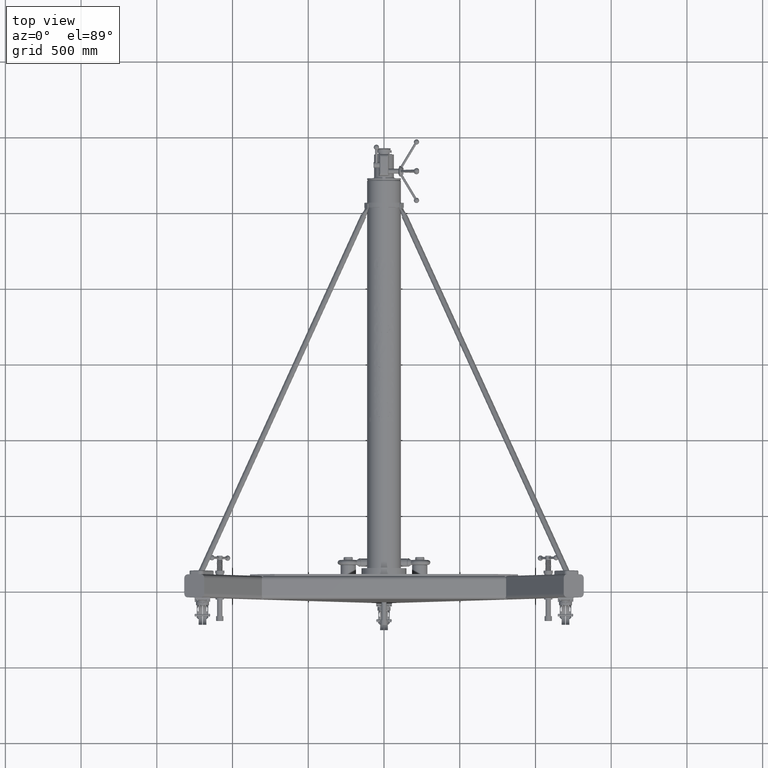
[diagram: clean part render]
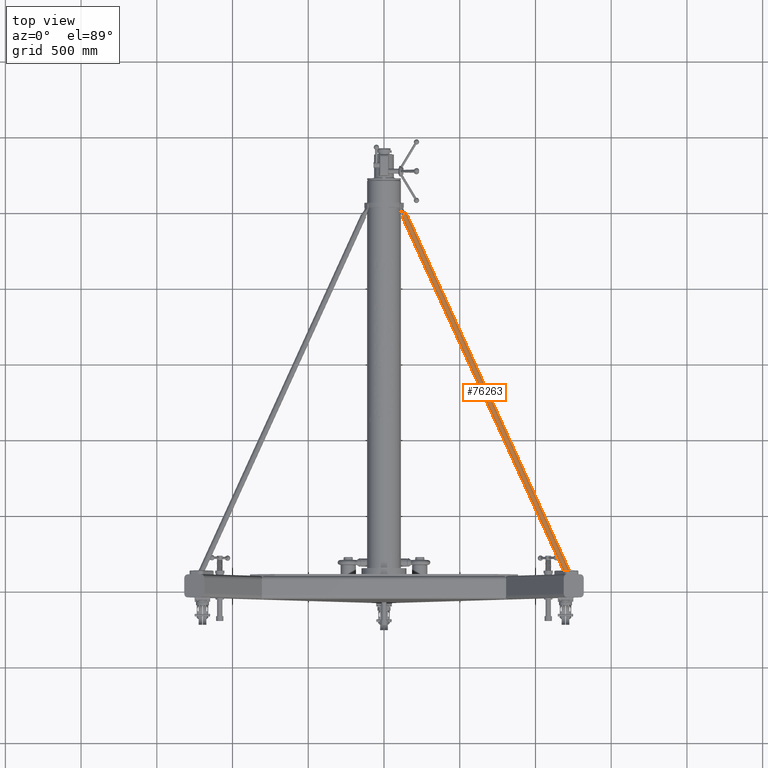
[diagram: same view with one face highlighted and labeled with its STEP entity id]
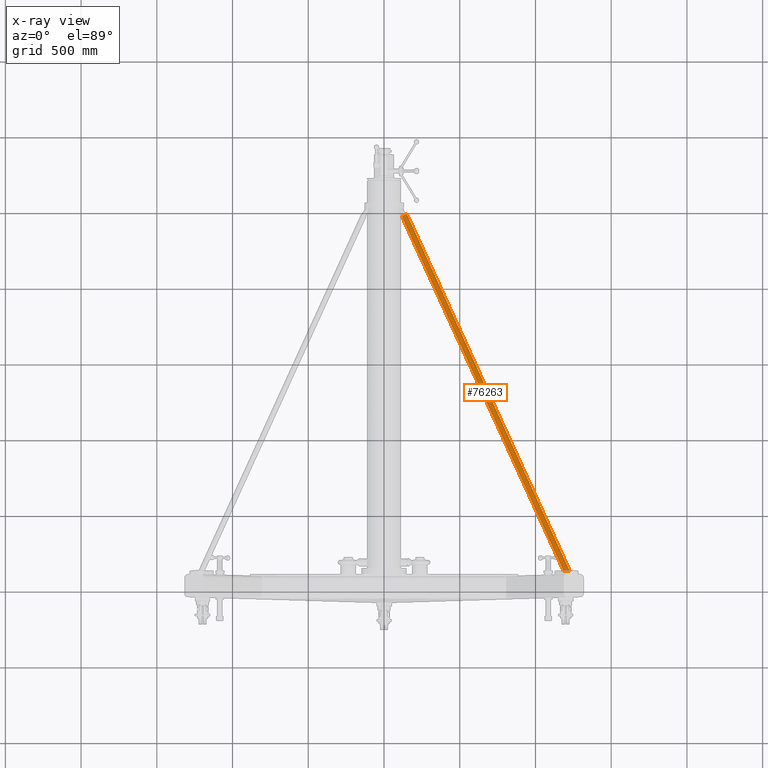
[diagram: x-ray of the same camera — body ghosted, the highlighted face saturated]
A machine part, top view. The second image highlights one B-rep face of the part: STEP entity #76263.
The next image is the same camera in x-ray: the body ghosted, the highlighted face saturated — about 0% of this face is hidden behind the body in this view.
In plain terms, the highlighted cylindrical surface (edge-blend (fillet) strip) has radius 19.05 mm, axis along (0.3992, -0.8794, 0.2594).
Its self-contained STEP definition (entity closure, byte-faithful):
#3976 = EDGE_CURVE ( 'Defeatured_1390+Defeatured_1391+Defeatured_1391+Defeatured_1391', #122415, #75108, #76116, .T. ) ;
#5484 = DIRECTION ( 'NONE',  ( -0.8607012654306172017, -0.2618904726832433916, 0.4365852860597591034 ) ) ;
#10686 = CARTESIAN_POINT ( 'NONE',  ( 4.683855723326640685, 96.46339354482201145, -2.995481012481632899 ) ) ;
#14509 = ORIENTED_EDGE ( 'NONE', *, *, #34067, .T. ) ;
#16142 = VERTEX_POINT ( 'NONE', #101010 ) ;
#17406 = CARTESIAN_POINT ( 'NONE',  ( 46.65312447834764953, 4.000000031182245230, 24.27919194072044462 ) ) ;
#31317 = CARTESIAN_POINT ( 'NONE',  ( 48.12248507572188316, 4.000000031777481979, 23.74019192898386876 ) ) ;
#32184 = CARTESIAN_POINT ( 'NONE',  ( 5.974907621472562269, 96.85622925384687676, -3.650358941571271831 ) ) ;
#32610 = LINE ( 'NONE', #97272, #64913 ) ;
#34067 = EDGE_CURVE ( 'NONE', #75108, #84948, #32610, .T. ) ;
#34824 = ORIENTED_EDGE ( 'NONE', *, *, #120582, .F. ) ;
#39277 = CARTESIAN_POINT ( 'NONE',  ( 5.329381672399601477, 96.65981139933444410, -3.322919977026452365 ) ) ;
#44402 =( BOUNDED_CURVE ( )  B_SPLINE_CURVE ( 3, ( #31317, #142242, #140808, #17406 ),
 .UNSPECIFIED., .F., .F. ) 
 B_SPLINE_CURVE_WITH_KNOTS ( ( 4, 4 ),
 ( 5.294905405019736833, 8.436498058609526396 ),
 .UNSPECIFIED. ) 
 CURVE ( )  GEOMETRIC_REPRESENTATION_ITEM ( )  RATIONAL_B_SPLINE_CURVE ( ( 1.000000000000000000, 0.3333333333333345916, 0.3333333333333345916, 1.000000000000000000 ) ) 
 REPRESENTATION_ITEM ( '' )  );
#47738 = EDGE_CURVE ( 'Defeatured_13925+Defeatured_1390+Defeatured_1390+Defeatured_1390', #16142, #84948, #44402, .T. ) ;
#49576 = CYLINDRICAL_SURFACE ( 'NONE', #88664, 0.7499999999999990008 ) ;
#61300 = DIRECTION ( 'NONE',  ( 0.3991681037299277257, -0.8794157856004611862, 0.2594083672539834184 ) ) ;
#62211 = DIRECTION ( 'NONE',  ( -0.8607012654306172017, -0.2618904726832433916, 0.4365852860597591034 ) ) ;
#64913 = VECTOR ( 'NONE', #97987, 39.37007874015748854 ) ;
#68331 = ORIENTED_EDGE ( 'NONE', *, *, #3976, .T. ) ;
#72312 = FACE_OUTER_BOUND ( 'NONE', #133817, .T. ) ;
#75108 = VERTEX_POINT ( 'NONE', #10686 ) ;
#76116 = CIRCLE ( 'NONE', #83117, 0.7499999999999990008 ) ;
#76263 = ADVANCED_FACE ( 'Defeatured_1390', ( #72312 ), #49576, .T. ) ;
#83117 = AXIS2_PLACEMENT_3D ( 'NONE', #104124, #140082, #62211 ) ;
#84409 = CARTESIAN_POINT ( 'NONE',  ( 5.974907621472564045, 96.85622925384687676, -3.650358941571271387 ) ) ;
#84948 = VERTEX_POINT ( 'NONE', #110610 ) ;
#88664 = AXIS2_PLACEMENT_3D ( 'NONE', #39277, #61300, #5484 ) ;
#95443 = DIRECTION ( 'NONE',  ( 0.3991681037299276702, -0.8794157856004609641, 0.2594083672539834184 ) ) ;
#97272 = CARTESIAN_POINT ( 'NONE',  ( 4.683855723326639797, 96.46339354482201145, -2.995481012481633343 ) ) ;
#97987 = DIRECTION ( 'NONE',  ( 0.3991681037299276702, -0.8794157856004609641, 0.2594083672539834184 ) ) ;
#101010 = CARTESIAN_POINT ( 'NONE',  ( 48.12248507572188316, 4.000000031777481979, 23.74019192898386876 ) ) ;
#102694 = VECTOR ( 'NONE', #95443, 39.37007874015748854 ) ;
#104124 = CARTESIAN_POINT ( 'NONE',  ( 5.329381672399601477, 96.65981139933444410, -3.322919977026452365 ) ) ;
#105205 = ORIENTED_EDGE ( 'NONE', *, *, #47738, .F. ) ;
#107915 = LINE ( 'NONE', #84409, #102694 ) ;
#110610 = CARTESIAN_POINT ( 'NONE',  ( 46.65312447834764953, 4.000000031182245230, 24.27919194072044462 ) ) ;
#120582 = EDGE_CURVE ( 'NONE', #122415, #16142, #107915, .T. ) ;
#122415 = VERTEX_POINT ( 'NONE', #32184 ) ;
#133817 = EDGE_LOOP ( 'NONE', ( #34824, #68331, #14509, #105205 ) ) ;
#140082 = DIRECTION ( 'NONE',  ( 0.3991681037299277257, -0.8794157856004611862, 0.2594083672539834184 ) ) ;
#140808 = CARTESIAN_POINT ( 'NONE',  ( 47.39779831691857481, 4.000000032000587957, 25.74727099851459755 ) ) ;
#142242 = CARTESIAN_POINT ( 'NONE',  ( 48.86715891429280134, 4.000000032595837141, 25.20827098677803235 ) ) ;